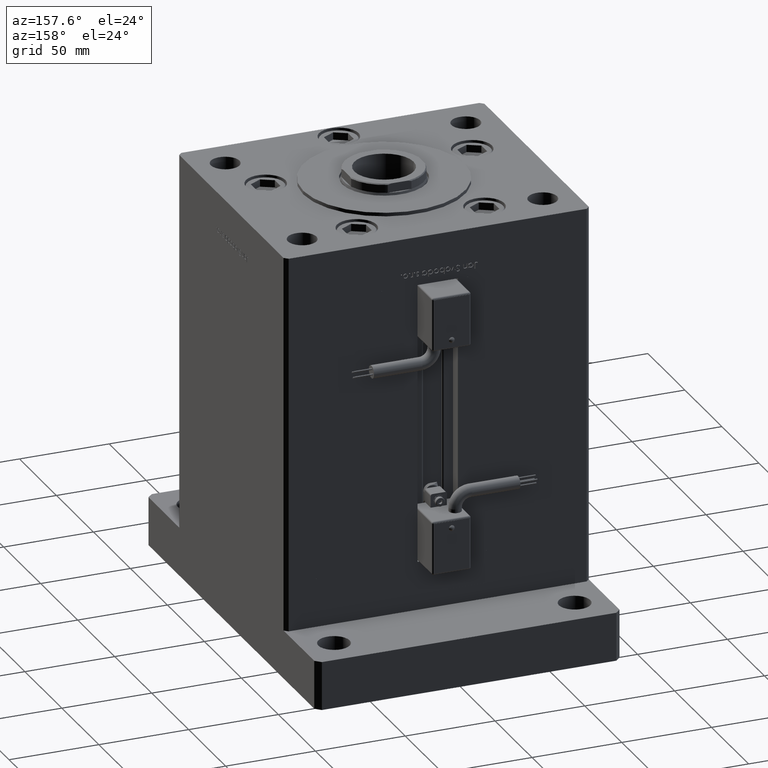
[diagram: clean part render]
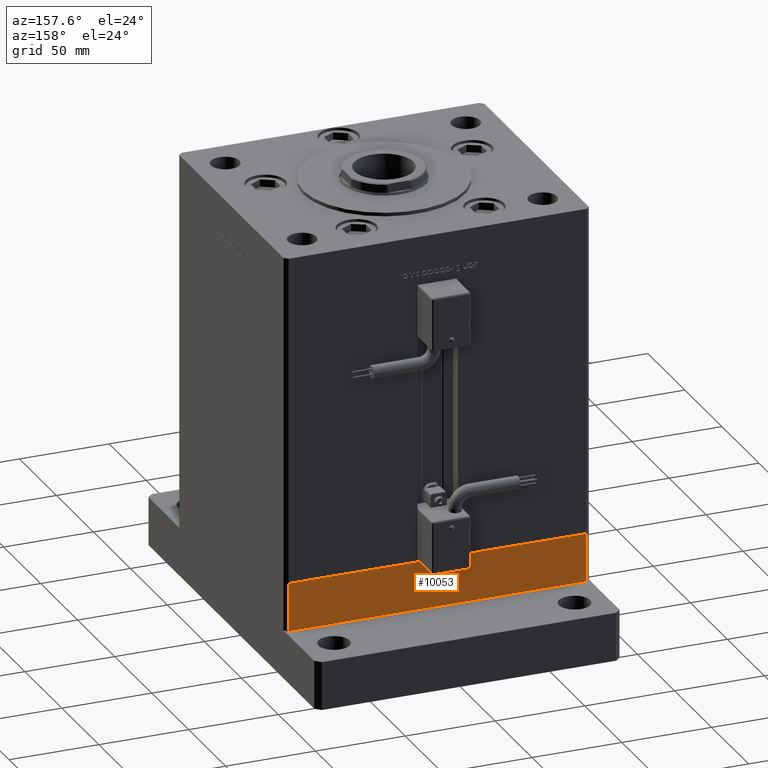
[diagram: same view with one face highlighted and labeled with its STEP entity id]
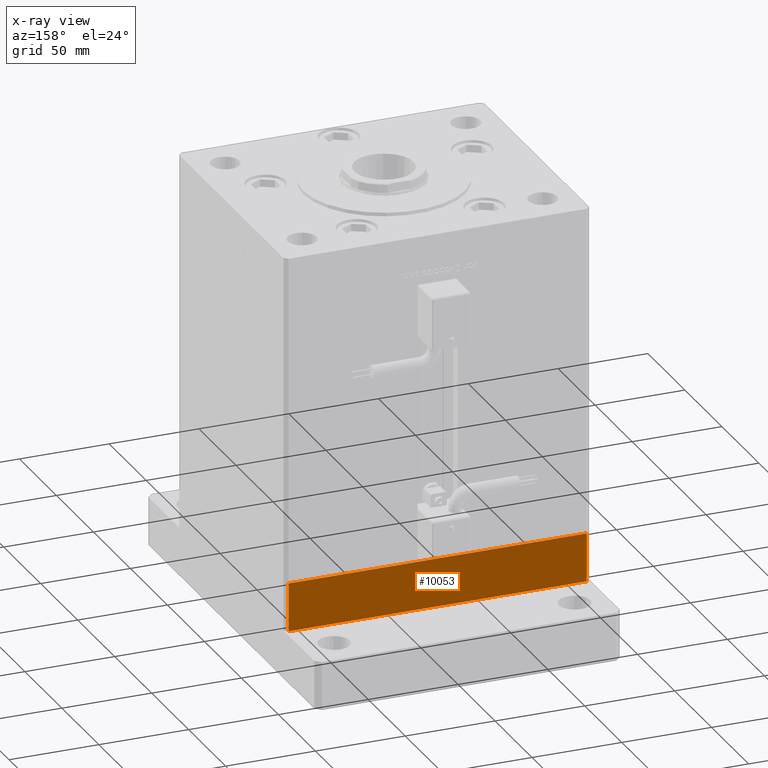
[diagram: x-ray of the same camera — body ghosted, the highlighted face saturated]
A machine part, auxiliary view. The second image highlights one B-rep face of the part: STEP entity #10053.
The next image is the same camera in x-ray: the body ghosted, the highlighted face saturated — about 0% of this face is hidden behind the body in this view.
In plain terms, the highlighted planar face has unit normal (0, 1, 0).
Its self-contained STEP definition (entity closure, byte-faithful):
#46 = CARTESIAN_POINT ( 'NONE',  ( -83.00000000000001421, 72.49999999999998579, -27.00000000000000000 ) ) ;
#1118 = ORIENTED_EDGE ( 'NONE', *, *, #23306, .F. ) ;
#1995 = EDGE_CURVE ( 'NONE', #28342, #54266, #6527, .T. ) ;
#2645 = EDGE_CURVE ( 'NONE', #28342, #40791, #44237, .T. ) ;
#3828 = VECTOR ( 'NONE', #36215, 1000.000000000000000 ) ;
#6527 = LINE ( 'NONE', #46174, #52599 ) ;
#10053 = ADVANCED_FACE ( 'NONE', ( #38412 ), #20706, .T. ) ;
#10513 = LINE ( 'NONE', #23362, #3828 ) ;
#12553 = VERTEX_POINT ( 'NONE', #35695 ) ;
#12847 = CARTESIAN_POINT ( 'NONE',  ( 82.99999999999992895, 72.50000000000002842, -27.00000000000000000 ) ) ;
#13120 = DIRECTION ( 'NONE',  ( -1.000000000000000000, -2.508033941171287983E-16, 0.000000000000000000 ) ) ;
#13151 = LINE ( 'NONE', #46, #45882 ) ;
#18218 = ORIENTED_EDGE ( 'NONE', *, *, #2645, .T. ) ;
#20706 = PLANE ( 'NONE',  #36513 ) ;
#20988 = CARTESIAN_POINT ( 'NONE',  ( 82.99999999999992895, 72.50000000000002842, -27.00000000000000000 ) ) ;
#21260 = DIRECTION ( 'NONE',  ( -1.000000000000000000, -2.508033941171287983E-16, 0.000000000000000000 ) ) ;
#21653 = VECTOR ( 'NONE', #13120, 1000.000000000000000 ) ;
#23306 = EDGE_CURVE ( 'NONE', #54266, #12553, #10513, .T. ) ;
#23362 = CARTESIAN_POINT ( 'NONE',  ( 82.99999999999992895, 72.50000000000002842, 0.000000000000000000 ) ) ;
#23921 = DIRECTION ( 'NONE',  ( 0.000000000000000000, 0.000000000000000000, 1.000000000000000000 ) ) ;
#28342 = VERTEX_POINT ( 'NONE', #44044 ) ;
#34285 = CARTESIAN_POINT ( 'NONE',  ( 82.99999999999992895, 72.50000000000002842, 0.000000000000000000 ) ) ;
#35281 = EDGE_LOOP ( 'NONE', ( #1118, #44760, #18218, #55000 ) ) ;
#35695 = CARTESIAN_POINT ( 'NONE',  ( -83.00000000000001421, 72.49999999999998579, 0.000000000000000000 ) ) ;
#36215 = DIRECTION ( 'NONE',  ( -1.000000000000000000, -2.508033941171287983E-16, 0.000000000000000000 ) ) ;
#36513 = AXIS2_PLACEMENT_3D ( 'NONE', #20988, #55206, #21260 ) ;
#38412 = FACE_OUTER_BOUND ( 'NONE', #35281, .T. ) ;
#40791 = VERTEX_POINT ( 'NONE', #54480 ) ;
#43701 = DIRECTION ( 'NONE',  ( 0.000000000000000000, 0.000000000000000000, 1.000000000000000000 ) ) ;
#44044 = CARTESIAN_POINT ( 'NONE',  ( 82.99999999999992895, 72.50000000000002842, -27.00000000000000000 ) ) ;
#44237 = LINE ( 'NONE', #12847, #21653 ) ;
#44760 = ORIENTED_EDGE ( 'NONE', *, *, #1995, .F. ) ;
#45882 = VECTOR ( 'NONE', #43701, 1000.000000000000000 ) ;
#46174 = CARTESIAN_POINT ( 'NONE',  ( 82.99999999999992895, 72.50000000000002842, -27.00000000000000000 ) ) ;
#46679 = EDGE_CURVE ( 'NONE', #40791, #12553, #13151, .T. ) ;
#52599 = VECTOR ( 'NONE', #23921, 1000.000000000000000 ) ;
#54266 = VERTEX_POINT ( 'NONE', #34285 ) ;
#54480 = CARTESIAN_POINT ( 'NONE',  ( -83.00000000000001421, 72.49999999999998579, -27.00000000000000000 ) ) ;
#55000 = ORIENTED_EDGE ( 'NONE', *, *, #46679, .T. ) ;
#55206 = DIRECTION ( 'NONE',  ( -2.508033941171287983E-16, 1.000000000000000000, 0.000000000000000000 ) ) ;